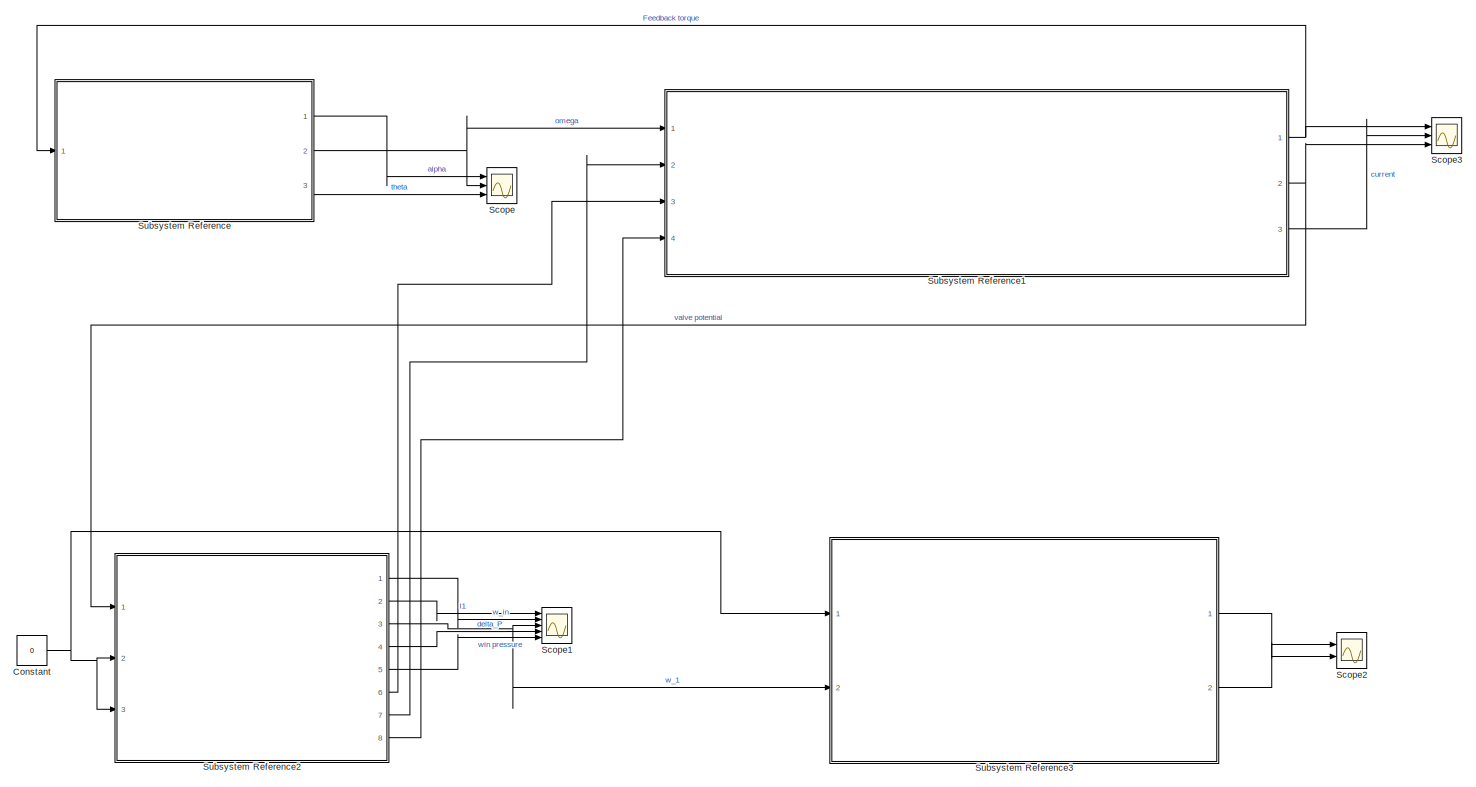
[diagram: root canvas - part 1/1, most of the canvas]
MODEL slx_0d11454dde62
KIND model
CONFIG AbsTol = auto
CONFIG EnableMultiTasking = off
CONFIG FixedStep = 1e-4
CONFIG MaxStep = auto
CONFIG MinStep = auto
CONFIG RelTol = 1e-3
CONFIG SampleTimeConstraint = Unconstrained
CONFIG SolverName = FixedStepAuto
CONFIG StartTime = 0.0
CONFIG StopTime = 10.0
WORKSPACE source: mxarray member
WORKSPACE theta_dot = 0
BLOCK [Constant] Constant
  Value = 0
BLOCK [Scope] Scope
  Floating = off
  NumInputPorts = 3
  Ports = [3]
  ScopeSpecificationString = Simulink.scopes.TimeScopeBlockCfg('CurrentConfiguration', extmgr.ConfigurationSet(extmgr.Configuration('Core','General UI',true),extmgr.Configuration('Core','Source UI',true),extmgr.Configuration('Sources','WiredSimulink',true),extmgr.Configuration('Visuals','Time Domain',true,'SerializedDisplays',{struct('MinYLimReal','-0.73008','MaxYLimReal','1.57071','YLabelReal','','MinYLimMag','0.00000','MaxY...<+1435ch>
BLOCK [Scope] Scope1
  Floating = off
  NumInputPorts = 5
  Ports = [5]
  ScopeSpecificationString = Simulink.scopes.TimeScopeBlockCfg('CurrentConfiguration', extmgr.ConfigurationSet(extmgr.Configuration('Core','General UI',true),extmgr.Configuration('Core','Source UI',true),extmgr.Configuration('Sources','WiredSimulink',true,'DataLoggingVariableName','ScopeData1'),extmgr.Configuration('Visuals','Time Domain',true,'SerializedDisplays',{struct('MinYLimReal','-52.54593','MaxYLimReal','40.00000','YL...<+1689ch>
BLOCK [Scope] Scope2
  Floating = off
  NumInputPorts = 2
  Ports = [2]
  ScopeSpecificationString = Simulink.scopes.TimeScopeBlockCfg('CurrentConfiguration', extmgr.ConfigurationSet(extmgr.Configuration('Core','General UI',true),extmgr.Configuration('Core','Source UI',true),extmgr.Configuration('Sources','WiredSimulink',true,'DataLoggingVariableName','ScopeData2'),extmgr.Configuration('Visuals','Time Domain',true,'SerializedDisplays',{struct('MinYLimReal','-1.35725','MaxYLimReal','12.15925','YLa...<+1410ch>
BLOCK [Scope] Scope3
  Floating = off
  NumInputPorts = 3
  Ports = [3]
  ScopeSpecificationString = Simulink.scopes.TimeScopeBlockCfg('CurrentConfiguration', extmgr.ConfigurationSet(extmgr.Configuration('Core','General UI',true),extmgr.Configuration('Core','Source UI',true),extmgr.Configuration('Sources','WiredSimulink',true,'DataLoggingVariableName','ScopeData3'),extmgr.Configuration('Visuals','Time Domain',true,'SerializedDisplays',{struct('MinYLimReal','-135.40377','MaxYLimReal','218.63393','...<+1510ch>
BLOCK [SubSystem] Subsystem Reference
  Ports = [1, 3]
  ReferencedSubsystem = Pendulum
  RequestExecContextInheritance = off
BLOCK [SubSystem] Subsystem Reference1
  Ports = [4, 3]
  ReferencedSubsystem = Motor_circuit
  RequestExecContextInheritance = off
BLOCK [SubSystem] Subsystem Reference2
  Ports = [3, 8]
  ReferencedSubsystem = Tank_system
  RequestExecContextInheritance = off
BLOCK [SubSystem] Subsystem Reference3
  Ports = [2, 2]
  ReferencedSubsystem = Dissipator_circuit
  RequestExecContextInheritance = off
NET Constant:1 -> Subsystem Reference2:2, Subsystem Reference2:3, Subsystem Reference3:1
NET Subsystem Reference1:1 -> Scope3:1, Subsystem Reference:1
NET Subsystem Reference1:2 -> Scope3:3, Subsystem Reference2:1
LINE Subsystem Reference1:3 -> Scope3:2
LINE Subsystem Reference2:1 -> Scope1:2
LINE Subsystem Reference2:2 -> Scope1:1
NET Subsystem Reference2:3 -> Scope1:3, Subsystem Reference3:2
LINE Subsystem Reference2:4 -> Scope1:4
LINE Subsystem Reference2:5 -> Scope1:5
LINE Subsystem Reference2:6 -> Subsystem Reference1:3
LINE Subsystem Reference2:7 -> Subsystem Reference1:2
LINE Subsystem Reference2:8 -> Subsystem Reference1:4
LINE Subsystem Reference3:1 -> Scope2:1
LINE Subsystem Reference3:2 -> Scope2:2
LINE Subsystem Reference:1 -> Scope:1
NET Subsystem Reference:2 -> Scope:2, Subsystem Reference1:1
LINE Subsystem Reference:3 -> Scope:3
note: NET lines group one-source signal fan-out (src -> all destinations, sorted); 1:1 wires keep LINE
